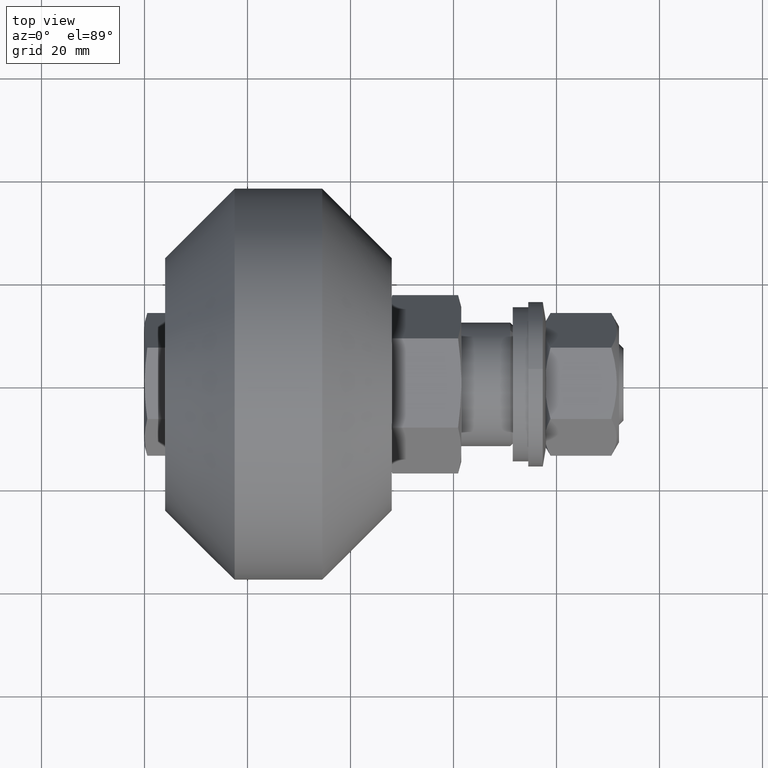
[diagram: clean part render]
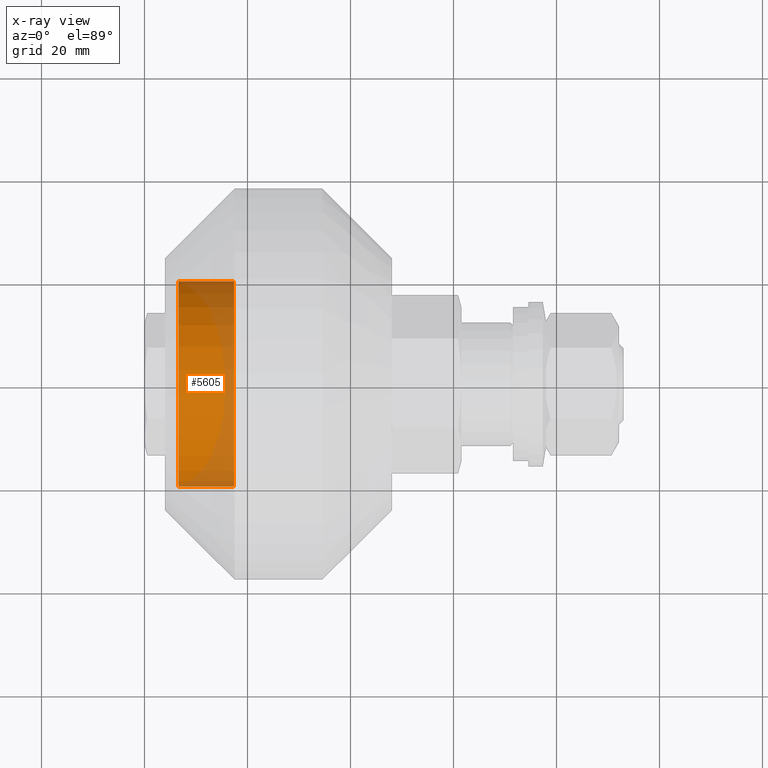
[diagram: x-ray — body ghosted, one internal face saturated and labeled with its STEP entity id]
A machine part, top view, then the same camera in x-ray: the body is ghosted and one INTERNAL B-rep face — a face not visible from any outside direction — is saturated and labeled: STEP entity #5605.
In plain terms, the highlighted cylindrical surface (bore or boss wall) has radius 20 mm, axis along (-1, -0, 0).
Its self-contained STEP definition (entity closure, byte-faithful):
#593=CYLINDRICAL_SURFACE('',#6381,20.);
#868=FACE_OUTER_BOUND('',#1185,.T.);
#1185=EDGE_LOOP('',(#5086,#5087,#5088,#5089,#5090,#5091));
#1543=LINE('',#9889,#1861);
#1861=VECTOR('',#7877,20.);
#2131=CIRCLE('',#6377,20.);
#2132=CIRCLE('',#6378,20.);
#2135=CIRCLE('',#6382,20.);
#2136=CIRCLE('',#6383,20.);
#2671=VERTEX_POINT('',#9878);
#2672=VERTEX_POINT('',#9879);
#2674=VERTEX_POINT('',#9886);
#2675=VERTEX_POINT('',#9887);
#3493=EDGE_CURVE('',#2671,#2672,#2131,.T.);
#3494=EDGE_CURVE('',#2672,#2671,#2132,.T.);
#3497=EDGE_CURVE('',#2674,#2675,#2135,.T.);
#3498=EDGE_CURVE('',#2674,#2672,#1543,.T.);
#3499=EDGE_CURVE('',#2675,#2674,#2136,.T.);
#5086=ORIENTED_EDGE('',*,*,#3497,.F.);
#5087=ORIENTED_EDGE('',*,*,#3498,.T.);
#5088=ORIENTED_EDGE('',*,*,#3493,.F.);
#5089=ORIENTED_EDGE('',*,*,#3494,.F.);
#5090=ORIENTED_EDGE('',*,*,#3498,.F.);
#5091=ORIENTED_EDGE('',*,*,#3499,.F.);
#5605=ADVANCED_FACE('',(#868),#593,.T.);
#6377=AXIS2_PLACEMENT_3D('',#9880,#7865,#7866);
#6378=AXIS2_PLACEMENT_3D('',#9881,#7867,#7868);
#6381=AXIS2_PLACEMENT_3D('',#9885,#7873,#7874);
#6382=AXIS2_PLACEMENT_3D('',#9888,#7875,#7876);
#6383=AXIS2_PLACEMENT_3D('',#9890,#7878,#7879);
#7865=DIRECTION('center_axis',(0.,0.,-1.));
#7866=DIRECTION('ref_axis',(-1.22464679914735E-16,-1.,0.));
#7867=DIRECTION('center_axis',(0.,0.,-1.));
#7868=DIRECTION('ref_axis',(-1.22464679914735E-16,-1.,0.));
#7873=DIRECTION('center_axis',(0.,0.,1.));
#7874=DIRECTION('ref_axis',(0.,1.,0.));
#7875=DIRECTION('center_axis',(0.,0.,1.));
#7876=DIRECTION('ref_axis',(-1.22464679914735E-16,-1.,0.));
#7877=DIRECTION('',(0.,0.,-1.));
#7878=DIRECTION('center_axis',(0.,0.,1.));
#7879=DIRECTION('ref_axis',(-1.22464679914735E-16,-1.,0.));
#9878=CARTESIAN_POINT('',(-20.,-2.44929359829471E-15,0.599999999999999));
#9879=CARTESIAN_POINT('',(2.44929359829471E-15,-20.,0.599999999999999));
#9880=CARTESIAN_POINT('Origin',(0.,0.,0.599999999999999));
#9881=CARTESIAN_POINT('Origin',(0.,0.,0.599999999999999));
#9885=CARTESIAN_POINT('Origin',(0.,0.,6.));
#9886=CARTESIAN_POINT('',(2.44929359829471E-15,-20.,11.4));
#9887=CARTESIAN_POINT('',(-20.,-2.44929359829471E-15,11.4));
#9888=CARTESIAN_POINT('Origin',(0.,0.,11.4));
#9889=CARTESIAN_POINT('',(2.44929359829471E-15,-20.,6.));
#9890=CARTESIAN_POINT('Origin',(0.,0.,11.4));